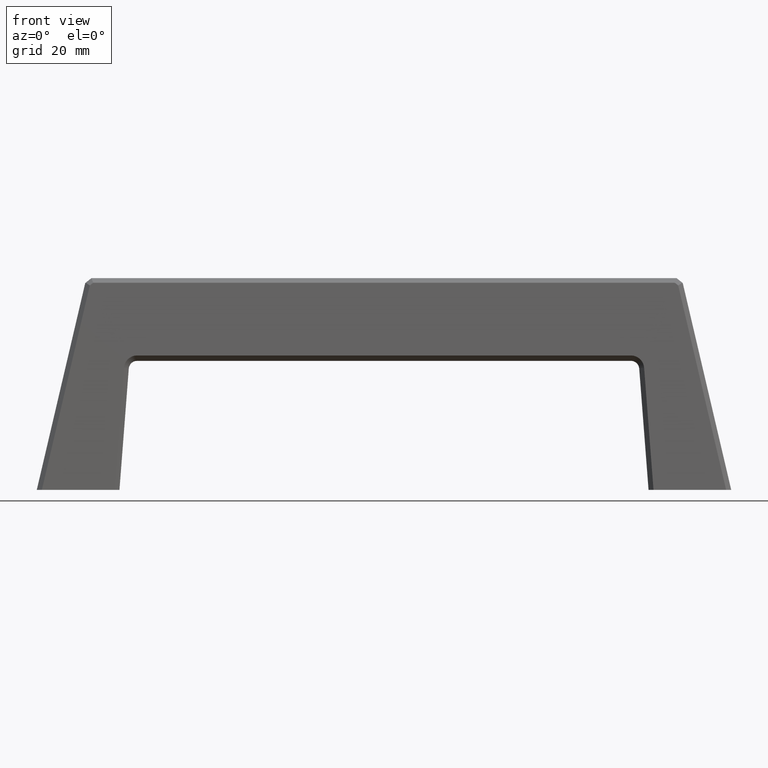
[diagram: clean part render]
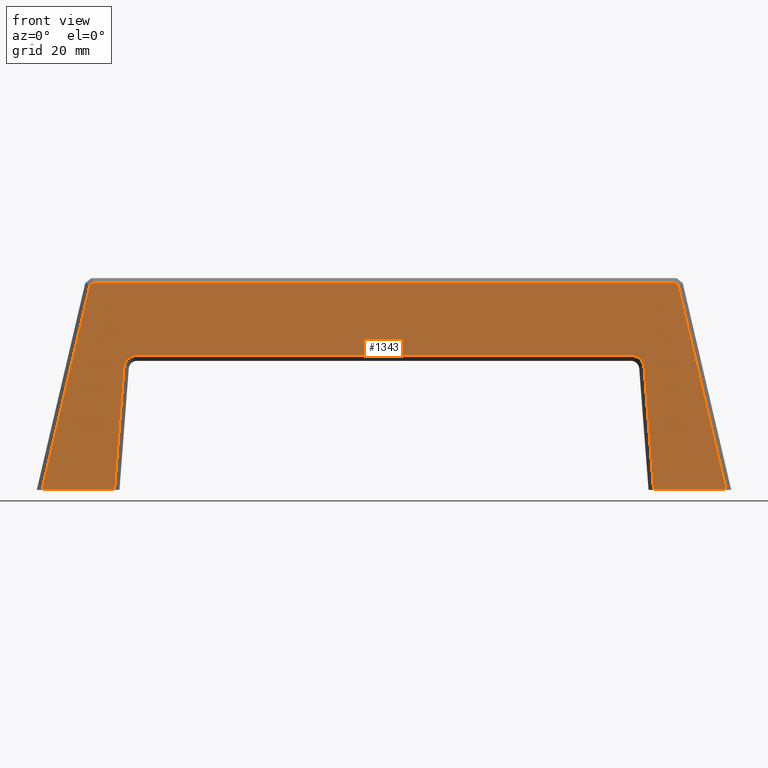
[diagram: same view with one face highlighted and labeled with its STEP entity id]
A machine part, front view. The second image highlights one B-rep face of the part: STEP entity #1343.
In plain terms, the highlighted face is a freeform B-spline surface patch.
Its self-contained STEP definition (entity closure, byte-faithful):
#441=CARTESIAN_POINT('',(78.662937682410103,-10.036635492252641,36.944919224136250));
#442=VERTEX_POINT('',#441);
#457=CARTESIAN_POINT('',(81.504389825943193,-13.500000000000000,0.0));
#458=VERTEX_POINT('',#457);
#464=CARTESIAN_POINT('',(78.662937682410103,-10.036635492252641,36.944919224136250));
#465=CARTESIAN_POINT('',(81.504389825943193,-13.500000000000000,0.0));
#466=QUASI_UNIFORM_CURVE('',1,(#464,#465),.UNSPECIFIED.,.F.,.U.);
#467=EDGE_CURVE('',#442,#458,#466,.T.);
#481=CARTESIAN_POINT('',(74.685383686855801,-9.691340243795910,40.628304277651353));
#482=VERTEX_POINT('',#481);
#511=CARTESIAN_POINT('',(74.685383686855801,-9.691340243795910,40.628304277651353));
#512=CARTESIAN_POINT('',(75.428084833931592,-9.689755713700604,40.645207013776357));
#513=CARTESIAN_POINT('',(76.143963027877632,-9.716856711652342,40.356111200159098));
#514=CARTESIAN_POINT('',(76.832111787616725,-9.742907956523119,40.078213469416049));
#515=CARTESIAN_POINT('',(77.391052689830701,-9.791416354566229,39.560757439770313));
#516=CARTESIAN_POINT('',(77.949110450634691,-9.839848108057344,39.044119004338569));
#517=CARTESIAN_POINT('',(78.279696349183752,-9.902261754209141,38.378330834943242));
#518=CARTESIAN_POINT('',(78.622805326888695,-9.967039720903680,37.687321632279193));
#519=CARTESIAN_POINT('',(78.662937682410103,-10.036635492252641,36.944919224136250));
#520=B_SPLINE_CURVE_WITH_KNOTS('',2,(#511,#512,#513,#514,#515,#516,#517,#518,#519),.UNSPECIFIED.,.F.,.U.,(3,2,2,2,3),(0.0,0.250000000000000,0.500000000000000,0.750000000000000,1.0),.UNSPECIFIED.);
#521=EDGE_CURVE('',#482,#442,#520,.T.);
#531=CARTESIAN_POINT('',(-74.684983689869199,-9.691340243795910,40.628304277651353));
#532=VERTEX_POINT('',#531);
#546=CARTESIAN_POINT('',(-74.684983689869199,-9.691340243795910,40.628304277651353));
#547=CARTESIAN_POINT('',(74.685383686855801,-9.691340243795910,40.628304277651353));
#548=QUASI_UNIFORM_CURVE('',1,(#546,#547),.UNSPECIFIED.,.F.,.U.);
#549=EDGE_CURVE('',#532,#482,#548,.T.);
#563=CARTESIAN_POINT('',(-78.662534369845915,-10.036631451276859,36.944962330636599));
#564=VERTEX_POINT('',#563);
#592=CARTESIAN_POINT('',(-78.662534369845915,-10.036631451276859,36.944962330636599));
#593=CARTESIAN_POINT('',(-78.622425980938161,-9.967091739858342,37.686766727915590));
#594=CARTESIAN_POINT('',(-78.279282149032241,-9.902259024748705,38.378359951051323));
#595=CARTESIAN_POINT('',(-77.949429787465220,-9.839937565939842,39.043164725851433));
#596=CARTESIAN_POINT('',(-77.390637000414159,-9.791414966013774,39.560772251944492));
#597=CARTESIAN_POINT('',(-76.832727120987215,-9.742969033099874,40.077561944233047));
#598=CARTESIAN_POINT('',(-76.143552866518192,-9.716856348040144,40.356115078937442));
#599=CARTESIAN_POINT('',(-75.428272015150228,-9.689754488851564,40.645220079669024));
#600=CARTESIAN_POINT('',(-74.684983689869199,-9.691340243795910,40.628304277651353));
#601=B_SPLINE_CURVE_WITH_KNOTS('',2,(#592,#593,#594,#595,#596,#597,#598,#599,#600),.UNSPECIFIED.,.F.,.U.,(3,2,2,2,3),(0.0,0.250000000000000,0.500000000000000,0.750000000000000,1.0),.UNSPECIFIED.);
#602=EDGE_CURVE('',#564,#532,#601,.T.);
#614=CARTESIAN_POINT('',(-81.504392586404691,-13.500000000000000,0.0));
#615=VERTEX_POINT('',#614);
#627=CARTESIAN_POINT('',(-81.504392586404691,-13.500000000000000,0.0));
#628=CARTESIAN_POINT('',(-78.662534369845915,-10.036631451276859,36.944962330636599));
#629=QUASI_UNIFORM_CURVE('',1,(#627,#628),.UNSPECIFIED.,.F.,.U.);
#630=EDGE_CURVE('',#615,#564,#629,.T.);
#841=CARTESIAN_POINT('',(103.459703175940600,-13.500000000000000,0.0));
#842=VERTEX_POINT('',#841);
#862=CARTESIAN_POINT('',(88.972632423667093,-7.705369501804310,61.813348035028604));
#863=VERTEX_POINT('',#862);
#869=CARTESIAN_POINT('',(103.459703175940600,-13.500000000000000,0.0));
#870=CARTESIAN_POINT('',(88.972632423667093,-7.705369501804310,61.813348035028604));
#871=QUASI_UNIFORM_CURVE('',1,(#869,#870),.UNSPECIFIED.,.F.,.U.);
#872=EDGE_CURVE('',#842,#863,#871,.T.);
#884=CARTESIAN_POINT('',(87.966773318006403,-7.630620498126040,62.610721772849303));
#885=VERTEX_POINT('',#884);
#891=CARTESIAN_POINT('',(88.972632423667093,-7.705369501804310,61.813348035028604));
#892=CARTESIAN_POINT('',(87.966773318006403,-7.630620498126040,62.610721772849303));
#893=QUASI_UNIFORM_CURVE('',1,(#891,#892),.UNSPECIFIED.,.F.,.U.);
#894=EDGE_CURVE('',#863,#885,#893,.T.);
#919=CARTESIAN_POINT('',(-87.966450157984795,-7.630620498126040,62.610721772849303));
#920=VERTEX_POINT('',#919);
#926=CARTESIAN_POINT('',(87.966773318006403,-7.630620498126040,62.610721772849303));
#927=CARTESIAN_POINT('',(-87.966450157984795,-7.630620498126040,62.610721772849303));
#928=QUASI_UNIFORM_CURVE('',1,(#926,#927),.UNSPECIFIED.,.F.,.U.);
#929=EDGE_CURVE('',#885,#920,#928,.T.);
#947=CARTESIAN_POINT('',(-88.972308819476908,-7.705369090273900,61.813352424967299));
#948=VERTEX_POINT('',#947);
#954=CARTESIAN_POINT('',(-87.966450157984795,-7.630620498126040,62.610721772849303));
#955=CARTESIAN_POINT('',(-88.972308819476908,-7.705369090273900,61.813352424967299));
#956=QUASI_UNIFORM_CURVE('',1,(#954,#955),.UNSPECIFIED.,.F.,.U.);
#957=EDGE_CURVE('',#920,#948,#956,.T.);
#980=CARTESIAN_POINT('',(-103.459702101207990,-13.500000000000000,0.0));
#981=VERTEX_POINT('',#980);
#989=CARTESIAN_POINT('',(-88.972308819476908,-7.705369090273900,61.813352424967299));
#990=CARTESIAN_POINT('',(-103.459702101207990,-13.500000000000000,0.0));
#991=QUASI_UNIFORM_CURVE('',1,(#989,#990),.UNSPECIFIED.,.F.,.U.);
#992=EDGE_CURVE('',#948,#981,#991,.T.);
#1316=CARTESIAN_POINT('',(-113.795325993751600,-13.793175494742730,-3.127405431202086));
#1317=CARTESIAN_POINT('',(-113.795325993751600,-7.337444845954401,65.738128883401828));
#1318=CARTESIAN_POINT('',(113.795332618495190,-13.793175494742730,-3.127405431202086));
#1319=CARTESIAN_POINT('',(113.795332618495190,-7.337444845954401,65.738128883401828));
#1320=B_SPLINE_SURFACE_WITH_KNOTS('',1,1,((#1316,#1318),(#1317,#1319)),.UNSPECIFIED.,.F.,.F.,.U.,(2,2),(2,2),(0.0,69.167465434592827),(0.0,227.590658612246810),.UNSPECIFIED.);
#1321=ORIENTED_EDGE('',*,*,#521,.T.);
#1322=ORIENTED_EDGE('',*,*,#467,.T.);
#1323=CARTESIAN_POINT('',(81.504389825943193,-13.500000000000000,0.0));
#1324=CARTESIAN_POINT('',(103.459703175940600,-13.500000000000000,0.0));
#1325=QUASI_UNIFORM_CURVE('',1,(#1323,#1324),.UNSPECIFIED.,.F.,.U.);
#1326=EDGE_CURVE('',#458,#842,#1325,.T.);
#1327=ORIENTED_EDGE('',*,*,#1326,.T.);
#1328=ORIENTED_EDGE('',*,*,#872,.T.);
#1329=ORIENTED_EDGE('',*,*,#894,.T.);
#1330=ORIENTED_EDGE('',*,*,#929,.T.);
#1331=ORIENTED_EDGE('',*,*,#957,.T.);
#1332=ORIENTED_EDGE('',*,*,#992,.T.);
#1333=CARTESIAN_POINT('',(-103.459702101207990,-13.500000000000000,0.0));
#1334=CARTESIAN_POINT('',(-81.504392586404691,-13.500000000000000,0.0));
#1335=QUASI_UNIFORM_CURVE('',1,(#1333,#1334),.UNSPECIFIED.,.F.,.U.);
#1336=EDGE_CURVE('',#981,#615,#1335,.T.);
#1337=ORIENTED_EDGE('',*,*,#1336,.T.);
#1338=ORIENTED_EDGE('',*,*,#630,.T.);
#1339=ORIENTED_EDGE('',*,*,#602,.T.);
#1340=ORIENTED_EDGE('',*,*,#549,.T.);
#1341=EDGE_LOOP('',(#1321,#1322,#1327,#1328,#1329,#1330,#1331,#1332,#1337,#1338,#1339,#1340));
#1342=FACE_OUTER_BOUND('',#1341,.T.);
#1343=ADVANCED_FACE('',(#1342),#1320,.F.);